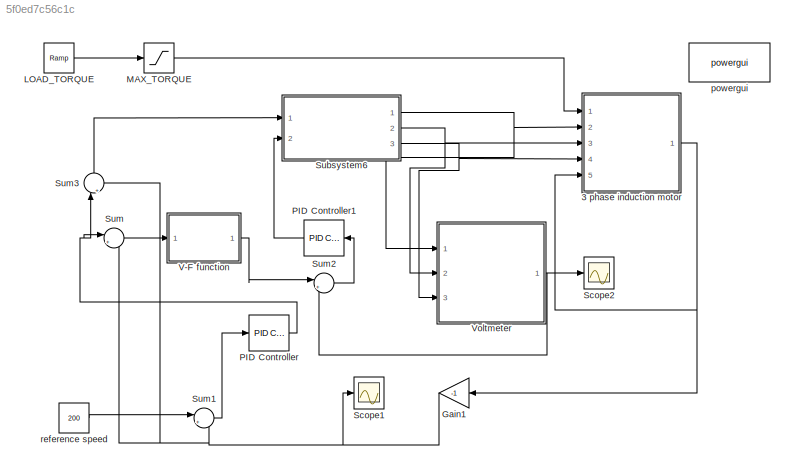
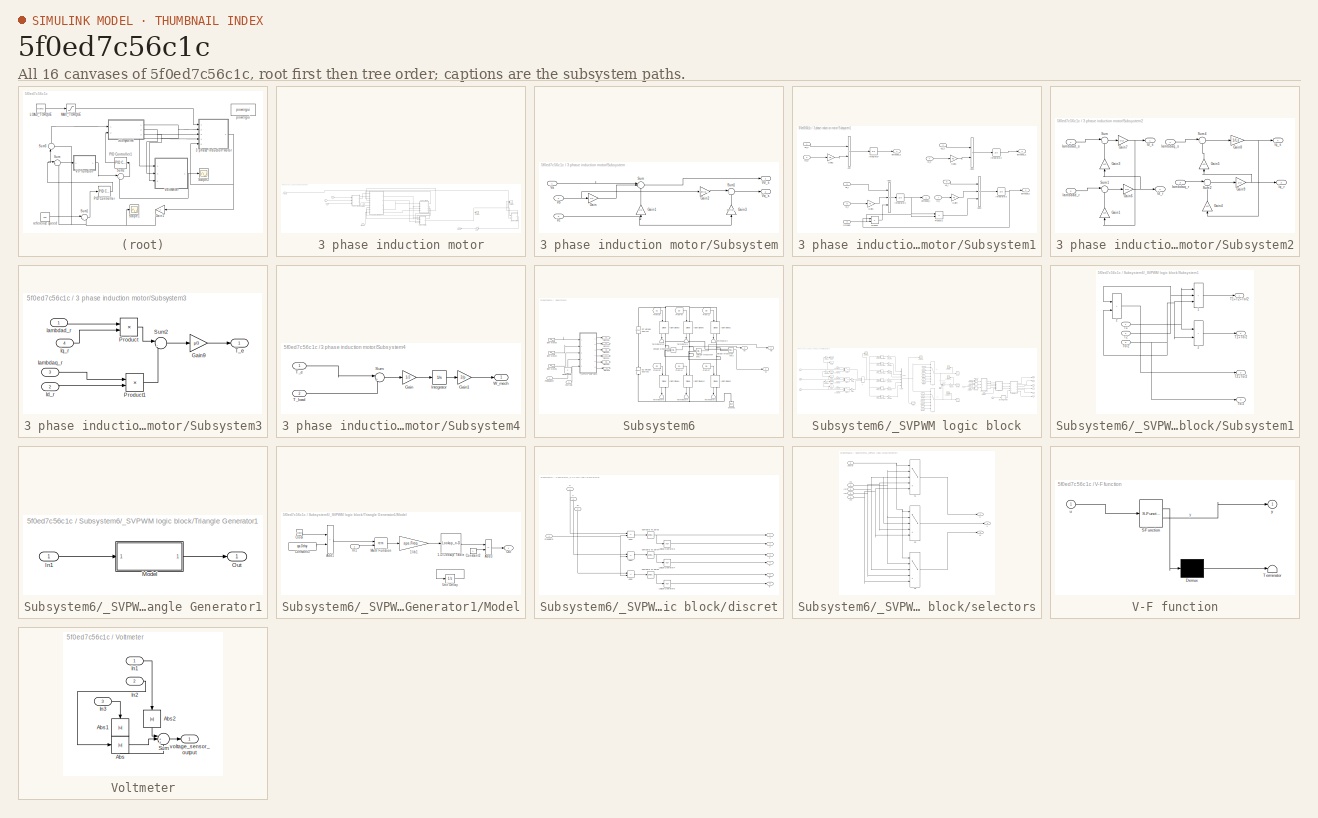
[diagram: thumbnail index - all 16 canvases of the model, root first then tree order]
MODEL slx_5f0ed7c56c1c
KIND model
CONFIG AbsTol = auto
CONFIG EnableMultiTasking = off
CONFIG FixedStep = auto
CONFIG MaxStep = auto
CONFIG MinStep = auto
CONFIG RelTol = 1e-3
CONFIG SampleTimeConstraint = Unconstrained
CONFIG SolverName = FixedStepAuto
CONFIG StartTime = 0.0
CONFIG StopTime = 200
BLOCK [SubSystem] 3 phase induction motor
  Ports = [5, 1]
  RequestExecContextInheritance = off
BLOCK [Constant] 3 phase induction motor/Constant
  Value = 0
BLOCK [Gain] 3 phase induction motor/Gain
  Gain = p/2
  NameLocation = top
BLOCK [Inport] 3 phase induction motor/Omega
  Port = 5
BLOCK [Scope] 3 phase induction motor/Scope
  Floating = off
  NumInputPorts = 1
  Ports = [1]
  ScopeSpecificationString = Simulink.scopes.TimeScopeBlockCfg('CurrentConfiguration', extmgr.ConfigurationSet(extmgr.Configuration('Core','General UI',true),extmgr.Configuration('Core','Source UI',true),extmgr.Configuration('Sources','WiredSimulink',true),extmgr.Configuration('Visuals','Time Domain',true,'SerializedDisplays',{struct('MinYLimReal','-1408.61101','MaxYLimReal','706.05147','YLabelReal','','MinYLimMag','  0.00000...<+1461ch>
BLOCK [Outport] 3 phase induction motor/Speed
BLOCK [SubSystem] 3 phase induction motor/Subsystem
  Ports = [3, 2]
  RequestExecContextInheritance = off
BLOCK [Gain] 3 phase induction motor/Subsystem/Gain
  Gain = 1/2
BLOCK [Gain] 3 phase induction motor/Subsystem/Gain1
  Gain = 1/2
  NameLocation = right
BLOCK [Gain] 3 phase induction motor/Subsystem/Gain2
  Gain = sqrt(3)/2
BLOCK [Gain] 3 phase induction motor/Subsystem/Gain3
  Gain = sqrt(3)/2
  NameLocation = right
BLOCK [Sum] 3 phase induction motor/Subsystem/Sum
  Inputs = |+--
  Ports = [3, 1]
BLOCK [Sum] 3 phase induction motor/Subsystem/Sum1
  Inputs = |+-
  Ports = [2, 1]
BLOCK [Inport] 3 phase induction motor/Subsystem/Va
BLOCK [Inport] 3 phase induction motor/Subsystem/Vb
  Port = 2
BLOCK [Inport] 3 phase induction motor/Subsystem/Vc
  Port = 3
BLOCK [Outport] 3 phase induction motor/Subsystem/Vd_s
  VectorParamsAs1DForOutWhenUnconnected = off
BLOCK [Outport] 3 phase induction motor/Subsystem/Vq_s
  Port = 2
  VectorParamsAs1DForOutWhenUnconnected = off
BLOCK [SubSystem] 3 phase induction motor/Subsystem1
  Ports = [9, 4]
  RequestExecContextInheritance = off
BLOCK [Sum] 3 phase induction motor/Subsystem1/Add
  IconShape = rectangular
  Inputs = +-
  Ports = [2, 1]
BLOCK [Sum] 3 phase induction motor/Subsystem1/Add1
  IconShape = rectangular
  Inputs = +--
  Ports = [3, 1]
BLOCK [Sum] 3 phase induction motor/Subsystem1/Add2
  IconShape = rectangular
  Inputs = +-
  Ports = [2, 1]
BLOCK [Sum] 3 phase induction motor/Subsystem1/Add3
  IconShape = rectangular
  Inputs = +-+
  Ports = [3, 1]
BLOCK [Gain] 3 phase induction motor/Subsystem1/Gain1
  Gain = Rr
BLOCK [Gain] 3 phase induction motor/Subsystem1/Gain2
  Gain = Rs
BLOCK [Gain] 3 phase induction motor/Subsystem1/Gain3
  Gain = Rs
BLOCK [Gain] 3 phase induction motor/Subsystem1/Gain4
  Gain = Rr
BLOCK [Inport] 3 phase induction motor/Subsystem1/Id_r
  Port = 8
BLOCK [Inport] 3 phase induction motor/Subsystem1/Id_s
  Port = 3
BLOCK [Integrator] 3 phase induction motor/Subsystem1/Integrator
  Ports = [1, 1]
BLOCK [Integrator] 3 phase induction motor/Subsystem1/Integrator1
  Ports = [1, 1]
BLOCK [Integrator] 3 phase induction motor/Subsystem1/Integrator2
  Ports = [1, 1]
BLOCK [Integrator] 3 phase induction motor/Subsystem1/Integrator3
  Ports = [1, 1]
BLOCK [Inport] 3 phase induction motor/Subsystem1/Iq_r
  Port = 7
BLOCK [Inport] 3 phase induction motor/Subsystem1/Iq_s
  Port = 4
BLOCK [Inport] 3 phase induction motor/Subsystem1/Omega
  Port = 9
BLOCK [Product] 3 phase induction motor/Subsystem1/Product
  Ports = [2, 1]
BLOCK [Product] 3 phase induction motor/Subsystem1/Product1
  Ports = [2, 1]
BLOCK [Inport] 3 phase induction motor/Subsystem1/Vd_r
  Port = 6
BLOCK [Inport] 3 phase induction motor/Subsystem1/Vd_s
BLOCK [Inport] 3 phase induction motor/Subsystem1/Vq_r
  Port = 5
BLOCK [Inport] 3 phase induction motor/Subsystem1/Vq_s
  Port = 2
BLOCK [Outport] 3 phase induction motor/Subsystem1/lambdad_r
  VectorParamsAs1DForOutWhenUnconnected = off
BLOCK [Outport] 3 phase induction motor/Subsystem1/lambdad_s
  Port = 4
  VectorParamsAs1DForOutWhenUnconnected = off
BLOCK [Outport] 3 phase induction motor/Subsystem1/lambdaq_r
  Port = 2
  VectorParamsAs1DForOutWhenUnconnected = off
BLOCK [Outport] 3 phase induction motor/Subsystem1/lambdaq_s
  Port = 3
  VectorParamsAs1DForOutWhenUnconnected = off
BLOCK [SubSystem] 3 phase induction motor/Subsystem2
  Ports = [4, 4]
  RequestExecContextInheritance = off
BLOCK [Gain] 3 phase induction motor/Subsystem2/Gain1
  Gain = Lm
  NameLocation = right
BLOCK [Gain] 3 phase induction motor/Subsystem2/Gain3
  Gain = Lm
  NameLocation = right
BLOCK [Gain] 3 phase induction motor/Subsystem2/Gain4
  Gain = Lm
  NameLocation = right
BLOCK [Gain] 3 phase induction motor/Subsystem2/Gain5
  Gain = Lm
  NameLocation = right
BLOCK [Gain] 3 phase induction motor/Subsystem2/Gain6
  Gain = 1/Lr
BLOCK [Gain] 3 phase induction motor/Subsystem2/Gain7
  Gain = 1/Ls
BLOCK [Gain] 3 phase induction motor/Subsystem2/Gain8
  Gain = 1/Ls
BLOCK [Gain] 3 phase induction motor/Subsystem2/Gain9
  Gain = 1/Lr
BLOCK [Inport] 3 phase induction motor/Subsystem2/Iambdad_r
  Port = 2
BLOCK [Inport] 3 phase induction motor/Subsystem2/Iambdad_s
BLOCK [Inport] 3 phase induction motor/Subsystem2/Iambdaq_r
  Port = 3
BLOCK [Inport] 3 phase induction motor/Subsystem2/Iambdaq_s
  Port = 4
BLOCK [Outport] 3 phase induction motor/Subsystem2/Id_r
  Port = 2
  VectorParamsAs1DForOutWhenUnconnected = off
BLOCK [Outport] 3 phase induction motor/Subsystem2/Id_s
  VectorParamsAs1DForOutWhenUnconnected = off
BLOCK [Outport] 3 phase induction motor/Subsystem2/Iq_r
  Port = 3
  VectorParamsAs1DForOutWhenUnconnected = off
BLOCK [Outport] 3 phase induction motor/Subsystem2/Iq_s
  Port = 4
  VectorParamsAs1DForOutWhenUnconnected = off
BLOCK [Sum] 3 phase induction motor/Subsystem2/Sum
  Inputs = |+-
  Ports = [2, 1]
BLOCK [Sum] 3 phase induction motor/Subsystem2/Sum1
  Inputs = |+-
  Ports = [2, 1]
BLOCK [Sum] 3 phase induction motor/Subsystem2/Sum2
  Inputs = |+-
  Ports = [2, 1]
BLOCK [Sum] 3 phase induction motor/Subsystem2/Sum4
  Inputs = |+-
  Ports = [2, 1]
BLOCK [SubSystem] 3 phase induction motor/Subsystem3
  Ports = [4, 1]
  RequestExecContextInheritance = off
BLOCK [Gain] 3 phase induction motor/Subsystem3/Gain9
  Gain = p/3
BLOCK [Inport] 3 phase induction motor/Subsystem3/Iambdaq_r
  Port = 3
BLOCK [Inport] 3 phase induction motor/Subsystem3/Id_r
  Port = 2
BLOCK [Inport] 3 phase induction motor/Subsystem3/Iq_r
  Port = 4
BLOCK [Product] 3 phase induction motor/Subsystem3/Product
  Ports = [2, 1]
BLOCK [Product] 3 phase induction motor/Subsystem3/Product1
  Ports = [2, 1]
BLOCK [Sum] 3 phase induction motor/Subsystem3/Sum2
  Inputs = |-+
  Ports = [2, 1]
BLOCK [Outport] 3 phase induction motor/Subsystem3/T_e
  VectorParamsAs1DForOutWhenUnconnected = off
BLOCK [Inport] 3 phase induction motor/Subsystem3/lambdad_r
BLOCK [SubSystem] 3 phase induction motor/Subsystem4
  Ports = [2, 1]
  RequestExecContextInheritance = off
BLOCK [Gain] 3 phase induction motor/Subsystem4/Gain
  Gain = 1/J
BLOCK [Gain] 3 phase induction motor/Subsystem4/Gain1
  Gain = 2/p
BLOCK [Integrator] 3 phase induction motor/Subsystem4/Integrator
  Ports = [1, 1]
BLOCK [Sum] 3 phase induction motor/Subsystem4/Sum
  Inputs = |+-
  Ports = [2, 1]
BLOCK [Inport] 3 phase induction motor/Subsystem4/T_e
BLOCK [Inport] 3 phase induction motor/Subsystem4/T_load
  Port = 2
BLOCK [Outport] 3 phase induction motor/Subsystem4/W_mech
  VectorParamsAs1DForOutWhenUnconnected = off
BLOCK [Inport] 3 phase induction motor/T_load
BLOCK [Inport] 3 phase induction motor/Va
  Port = 2
BLOCK [Inport] 3 phase induction motor/Vb
  Port = 3
BLOCK [Inport] 3 phase induction motor/Vc
  Port = 4
BLOCK [Reference] 3 phase induction motor/XY Graph  REF=simulink/Sinks/XY Graph
  Ports = [2]
  SourceBlock = simulink/Sinks/XY Graph
  SourceProductBaseCode = SL
  SourceType = XY scope.
BLOCK [Gain] Gain1
  Gain = -1
  NameLocation = top
BLOCK [Reference] LOAD_TORQUE  REF=simulink/Sources/Ramp
  Ports = [0, 1]
  SourceBlock = simulink/Sources/Ramp
  SourceProductBaseCode = SL
  SourceType = Ramp
BLOCK [Saturate] MAX_TORQUE
  LowerLimit = 0
  UpperLimit = 5
BLOCK [Reference] PID Controller  REF=pid_lib/PID Controller
  Ports = [1, 1]
  SourceBlock = pid_lib/PID Controller
  SourceProductBaseCode = SL
  SourceType = PID 1dof
BLOCK [Reference] PID Controller1  REF=pid_lib/PID Controller
  NameLocation = top
  Ports = [1, 1]
  SourceBlock = pid_lib/PID Controller
  SourceProductBaseCode = SL
  SourceType = PID 1dof
BLOCK [Scope] Scope1
  Floating = off
  NumInputPorts = 1
  Ports = [1]
  ScopeSpecificationString = Simulink.scopes.TimeScopeBlockCfg('CurrentConfiguration', extmgr.ConfigurationSet(extmgr.Configuration('Core','General UI',true),extmgr.Configuration('Core','Source UI',true),extmgr.Configuration('Sources','WiredSimulink',true,'DataLoggingVariableName','ScopeData1'),extmgr.Configuration('Visuals','Time Domain',true,'SerializedDisplays',{struct('MinYLimReal','-25.48747','MaxYLimReal','229.38723','Y...<+1806ch>
BLOCK [Scope] Scope2
  Floating = off
  NumInputPorts = 1
  Ports = [1]
  ScopeSpecificationString = Simulink.scopes.TimeScopeBlockCfg('CurrentConfiguration', extmgr.ConfigurationSet(extmgr.Configuration('Core','General UI',true),extmgr.Configuration('Core','Source UI',true),extmgr.Configuration('Sources','WiredSimulink',true,'DataLoggingVariableName','ScopeData1'),extmgr.Configuration('Visuals','Time Domain',true,'SerializedDisplays',{struct('MinYLimReal','-62.5','MaxYLimReal','562.49999','YLabe...<+1364ch>
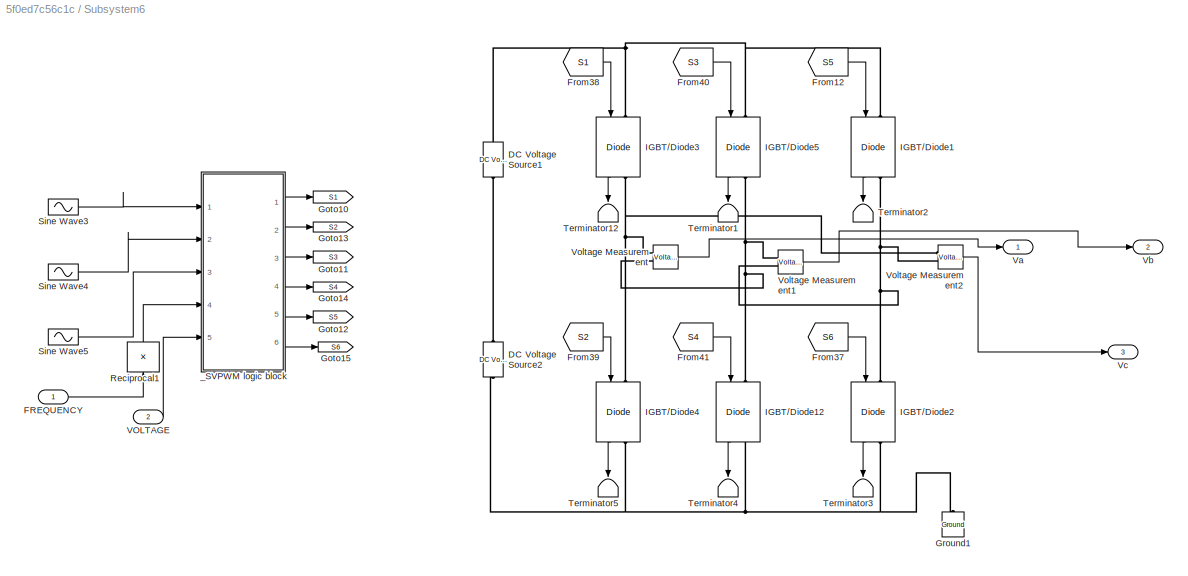
BLOCK [SubSystem] Subsystem6
  Ports = [2, 3]
  RequestExecContextInheritance = off
BLOCK [Reference] Subsystem6/DC Voltage Source1  REF=powerlib/Electrical
Sources/DC Voltage Source
  NameLocation = right
  Ports = [0, 0, 0, 0, 0, 1, 1]
  SourceBlock = powerlib/Electrical\nSources/DC Voltage Source
  SourceProductBaseCode = PS
  SourceType = DC Voltage Source
BLOCK [Reference] Subsystem6/DC Voltage Source2  REF=powerlib/Electrical
Sources/DC Voltage Source
  NameLocation = right
  Ports = [0, 0, 0, 0, 0, 1, 1]
  SourceBlock = powerlib/Electrical\nSources/DC Voltage Source
  SourceProductBaseCode = PS
  SourceType = DC Voltage Source
BLOCK [Inport] Subsystem6/FREQUENCY
BLOCK [From] Subsystem6/From12
  GotoTag = S5
BLOCK [From] Subsystem6/From37
  GotoTag = S6
BLOCK [From] Subsystem6/From38
  GotoTag = S1
BLOCK [From] Subsystem6/From39
  GotoTag = S2
BLOCK [From] Subsystem6/From40
  GotoTag = S3
BLOCK [From] Subsystem6/From41
  GotoTag = S4
BLOCK [Goto] Subsystem6/Goto10
  GotoTag = S1
BLOCK [Goto] Subsystem6/Goto11
  GotoTag = S3
BLOCK [Goto] Subsystem6/Goto12
  GotoTag = S5
BLOCK [Goto] Subsystem6/Goto13
  GotoTag = S2
BLOCK [Goto] Subsystem6/Goto14
  GotoTag = S4
BLOCK [Goto] Subsystem6/Goto15
  GotoTag = S6
BLOCK [Reference] Subsystem6/Ground1  REF=powerlib/Elements/Ground
  NameLocation = right
  Ports = [0, 0, 0, 0, 0, 1]
  SourceBlock = powerlib/Elements/Ground
  SourceProductBaseCode = PS
  SourceType = Ground
BLOCK [Reference] Subsystem6/IGBT//Diode1  REF=powerlib/Power
Electronics/IGBT//Diode
  NameLocation = left
  Ports = [1, 1, 0, 0, 0, 1, 1]
  SourceBlock = powerlib/Power\nElectronics/IGBT//Diode
  SourceProductBaseCode = PS
  SourceType = IGBT/Diode
BLOCK [Reference] Subsystem6/IGBT//Diode12  REF=powerlib/Power
Electronics/IGBT//Diode
  NameLocation = left
  Ports = [1, 1, 0, 0, 0, 1, 1]
  SourceBlock = powerlib/Power\nElectronics/IGBT//Diode
  SourceProductBaseCode = PS
  SourceType = IGBT/Diode
BLOCK [Reference] Subsystem6/IGBT//Diode2  REF=powerlib/Power
Electronics/IGBT//Diode
  NameLocation = left
  Ports = [1, 1, 0, 0, 0, 1, 1]
  SourceBlock = powerlib/Power\nElectronics/IGBT//Diode
  SourceProductBaseCode = PS
  SourceType = IGBT/Diode
BLOCK [Reference] Subsystem6/IGBT//Diode3  REF=powerlib/Power
Electronics/IGBT//Diode
  NameLocation = left
  Ports = [1, 1, 0, 0, 0, 1, 1]
  SourceBlock = powerlib/Power\nElectronics/IGBT//Diode
  SourceProductBaseCode = PS
  SourceType = IGBT/Diode
BLOCK [Reference] Subsystem6/IGBT//Diode4  REF=powerlib/Power
Electronics/IGBT//Diode
  NameLocation = left
  Ports = [1, 1, 0, 0, 0, 1, 1]
  SourceBlock = powerlib/Power\nElectronics/IGBT//Diode
  SourceProductBaseCode = PS
  SourceType = IGBT/Diode
BLOCK [Reference] Subsystem6/IGBT//Diode5  REF=powerlib/Power
Electronics/IGBT//Diode
  NameLocation = left
  Ports = [1, 1, 0, 0, 0, 1, 1]
  SourceBlock = powerlib/Power\nElectronics/IGBT//Diode
  SourceProductBaseCode = PS
  SourceType = IGBT/Diode
BLOCK [Product] Subsystem6/Reciprocal1
  Inputs = /
  NameLocation = right
  Ports = [1, 1]
BLOCK [Sin] Subsystem6/Sine Wave3
  Frequency = 50*2*pi
  Ports = [0, 1]
  SampleTime = 0
BLOCK [Sin] Subsystem6/Sine Wave4
  Frequency = 50*2*pi
  Phase = pi*(-2/3)
  Ports = [0, 1]
  SampleTime = 0
BLOCK [Sin] Subsystem6/Sine Wave5
  Frequency = 50*2*pi
  Phase = pi*(2/3)
  Ports = [0, 1]
  SampleTime = 0
BLOCK [Terminator] Subsystem6/Terminator1
  NameLocation = left
BLOCK [Terminator] Subsystem6/Terminator12
  NameLocation = left
BLOCK [Terminator] Subsystem6/Terminator2
  NameLocation = left
BLOCK [Terminator] Subsystem6/Terminator3
  NameLocation = left
BLOCK [Terminator] Subsystem6/Terminator4
  NameLocation = left
BLOCK [Terminator] Subsystem6/Terminator5
  NameLocation = left
BLOCK [Inport] Subsystem6/VOLTAGE
  Port = 2
BLOCK [Outport] Subsystem6/Va
BLOCK [Outport] Subsystem6/Vb
  Port = 2
BLOCK [Outport] Subsystem6/Vc
  Port = 3
BLOCK [Reference] Subsystem6/Voltage Measurement  REF=powerlib/Measurements/Voltage Measurement
  Ports = [0, 1, 0, 0, 0, 2]
  SourceBlock = powerlib/Measurements/Voltage Measurement
  SourceProductBaseCode = PS
  SourceType = Voltage Measurement
  UserDataPersistent = on
BLOCK [Reference] Subsystem6/Voltage Measurement1  REF=powerlib/Measurements/Voltage Measurement
  Ports = [0, 1, 0, 0, 0, 2]
  SourceBlock = powerlib/Measurements/Voltage Measurement
  SourceProductBaseCode = PS
  SourceType = Voltage Measurement
  UserDataPersistent = on
BLOCK [Reference] Subsystem6/Voltage Measurement2  REF=powerlib/Measurements/Voltage Measurement
  Ports = [0, 1, 0, 0, 0, 2]
  SourceBlock = powerlib/Measurements/Voltage Measurement
  SourceProductBaseCode = PS
  SourceType = Voltage Measurement
  UserDataPersistent = on
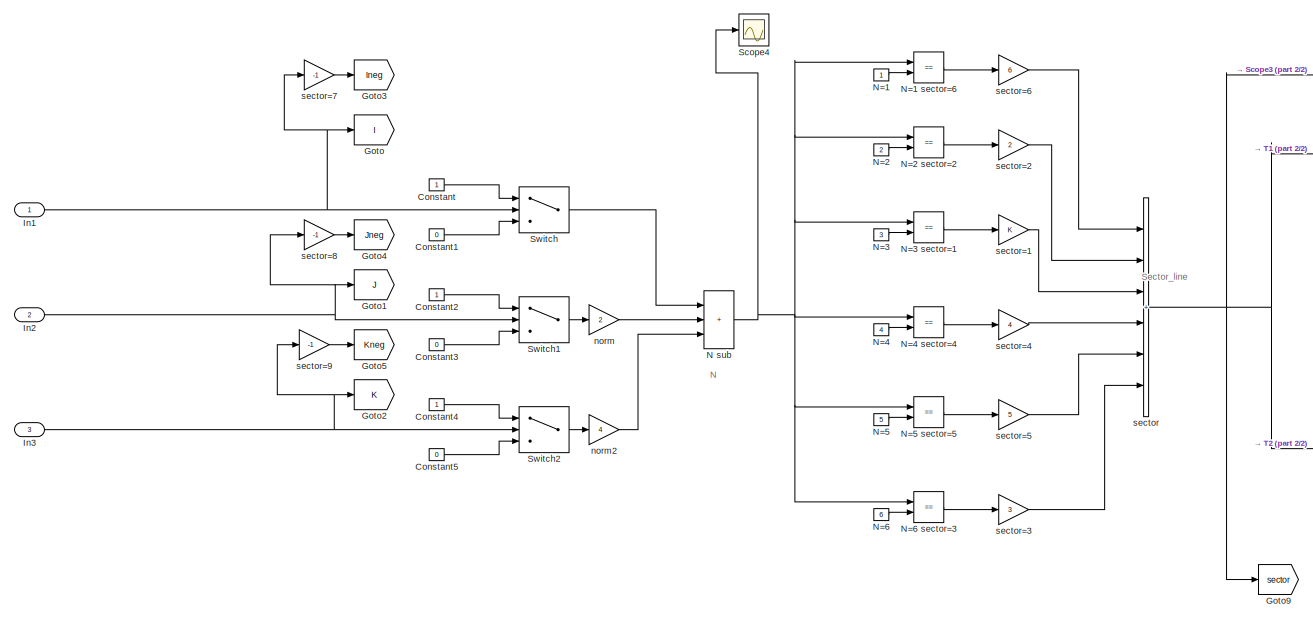
[diagram: Subsystem6/_SVPWM logic block - part 1/2, left side, full height]
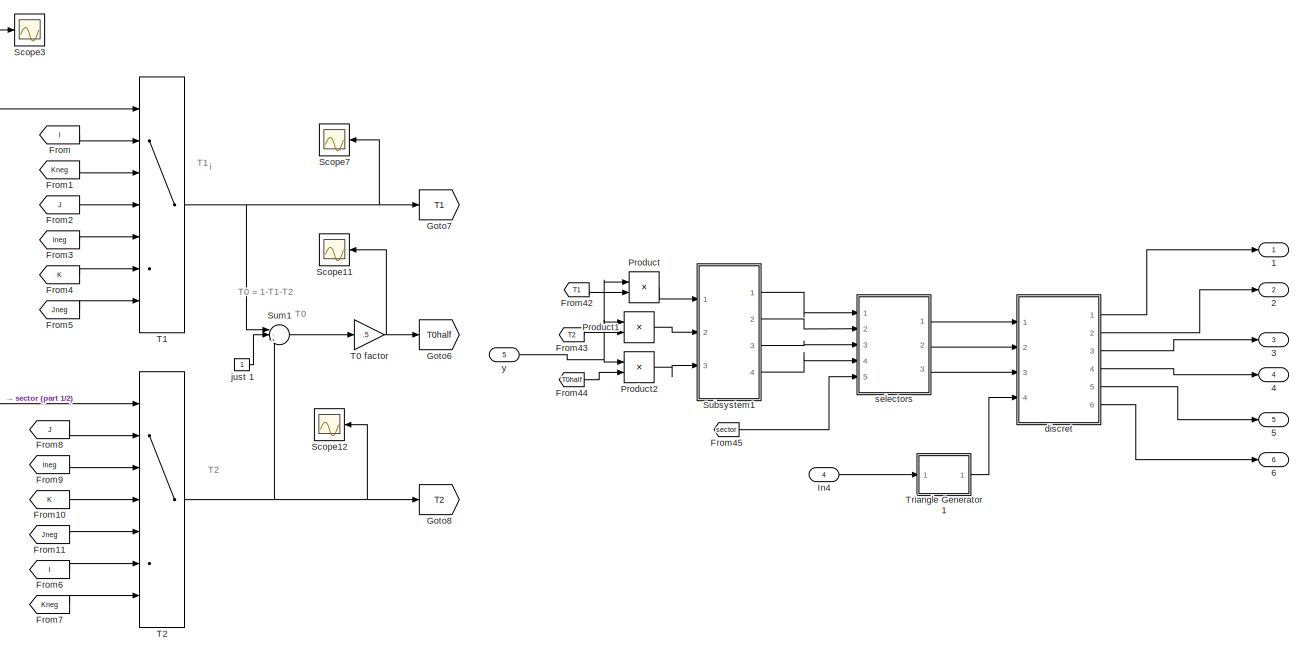
[diagram: Subsystem6/_SVPWM logic block - part 2/2, right side, full height]
BLOCK [SubSystem] Subsystem6/_SVPWM logic block
  Ports = [5, 6]
  RequestExecContextInheritance = off
BLOCK [Outport] Subsystem6/_SVPWM logic block/1
BLOCK [Outport] Subsystem6/_SVPWM logic block/2
  Port = 2
BLOCK [Outport] Subsystem6/_SVPWM logic block/3
  Port = 3
BLOCK [Outport] Subsystem6/_SVPWM logic block/4
  Port = 4
BLOCK [Outport] Subsystem6/_SVPWM logic block/5
  Port = 5
BLOCK [Outport] Subsystem6/_SVPWM logic block/6
  Port = 6
BLOCK [Constant] Subsystem6/_SVPWM logic block/Constant
BLOCK [Constant] Subsystem6/_SVPWM logic block/Constant1
  Value = 0
BLOCK [Constant] Subsystem6/_SVPWM logic block/Constant2
BLOCK [Constant] Subsystem6/_SVPWM logic block/Constant3
  Value = 0
BLOCK [Constant] Subsystem6/_SVPWM logic block/Constant4
BLOCK [Constant] Subsystem6/_SVPWM logic block/Constant5
  Value = 0
BLOCK [From] Subsystem6/_SVPWM logic block/From
  GotoTag = I
BLOCK [From] Subsystem6/_SVPWM logic block/From1
  GotoTag = Kneg
BLOCK [From] Subsystem6/_SVPWM logic block/From10
  GotoTag = K
BLOCK [From] Subsystem6/_SVPWM logic block/From11
  GotoTag = Jneg
BLOCK [From] Subsystem6/_SVPWM logic block/From2
  GotoTag = J
BLOCK [From] Subsystem6/_SVPWM logic block/From3
  GotoTag = Ineg
BLOCK [From] Subsystem6/_SVPWM logic block/From4
  GotoTag = K
BLOCK [From] Subsystem6/_SVPWM logic block/From42
  GotoTag = T1
BLOCK [From] Subsystem6/_SVPWM logic block/From43
  GotoTag = T2
BLOCK [From] Subsystem6/_SVPWM logic block/From44
  GotoTag = T0half
BLOCK [From] Subsystem6/_SVPWM logic block/From45
  GotoTag = sector
BLOCK [From] Subsystem6/_SVPWM logic block/From5
  GotoTag = Jneg
BLOCK [From] Subsystem6/_SVPWM logic block/From6
  GotoTag = I
BLOCK [From] Subsystem6/_SVPWM logic block/From7
  GotoTag = Kneg
BLOCK [From] Subsystem6/_SVPWM logic block/From8
  GotoTag = J
BLOCK [From] Subsystem6/_SVPWM logic block/From9
  GotoTag = Ineg
BLOCK [Goto] Subsystem6/_SVPWM logic block/Goto
  GotoTag = I
BLOCK [Goto] Subsystem6/_SVPWM logic block/Goto1
  GotoTag = J
BLOCK [Goto] Subsystem6/_SVPWM logic block/Goto2
  GotoTag = K
BLOCK [Goto] Subsystem6/_SVPWM logic block/Goto3
  GotoTag = Ineg
BLOCK [Goto] Subsystem6/_SVPWM logic block/Goto4
  GotoTag = Jneg
BLOCK [Goto] Subsystem6/_SVPWM logic block/Goto5
  GotoTag = Kneg
BLOCK [Goto] Subsystem6/_SVPWM logic block/Goto6
  GotoTag = T0half
BLOCK [Goto] Subsystem6/_SVPWM logic block/Goto7
  GotoTag = T1
BLOCK [Goto] Subsystem6/_SVPWM logic block/Goto8
  GotoTag = T2
BLOCK [Goto] Subsystem6/_SVPWM logic block/Goto9
  GotoTag = sector
BLOCK [Inport] Subsystem6/_SVPWM logic block/In1
BLOCK [Inport] Subsystem6/_SVPWM logic block/In2
  Port = 2
BLOCK [Inport] Subsystem6/_SVPWM logic block/In3
  Port = 3
BLOCK [Inport] Subsystem6/_SVPWM logic block/In4
  Port = 4
BLOCK [Sum] Subsystem6/_SVPWM logic block/N sub
  IconShape = rectangular
  Inputs = +++
  Ports = [3, 1]
BLOCK [Constant] Subsystem6/_SVPWM logic block/N=1
BLOCK [RelationalOperator] Subsystem6/_SVPWM logic block/N=1 sector=6
  InputSameDT = off
  Operator = ==
  OutDataTypeStr = boolean
  Ports = [2, 1]
BLOCK [Constant] Subsystem6/_SVPWM logic block/N=2
  Value = 2
BLOCK [RelationalOperator] Subsystem6/_SVPWM logic block/N=2 sector=2
  InputSameDT = off
  Operator = ==
  OutDataTypeStr = boolean
  Ports = [2, 1]
BLOCK [Constant] Subsystem6/_SVPWM logic block/N=3
  Value = 3
BLOCK [RelationalOperator] Subsystem6/_SVPWM logic block/N=3 sector=1
  InputSameDT = off
  Operator = ==
  OutDataTypeStr = boolean
  Ports = [2, 1]
BLOCK [Constant] Subsystem6/_SVPWM logic block/N=4
  Value = 4
BLOCK [RelationalOperator] Subsystem6/_SVPWM logic block/N=4 sector=4
  InputSameDT = off
  Operator = ==
  OutDataTypeStr = boolean
  Ports = [2, 1]
BLOCK [Constant] Subsystem6/_SVPWM logic block/N=5
  Value = 5
BLOCK [RelationalOperator] Subsystem6/_SVPWM logic block/N=5 sector=5
  InputSameDT = off
  Operator = ==
  OutDataTypeStr = boolean
  Ports = [2, 1]
BLOCK [Constant] Subsystem6/_SVPWM logic block/N=6
  Value = 6
BLOCK [RelationalOperator] Subsystem6/_SVPWM logic block/N=6 sector=3
  InputSameDT = off
  Operator = ==
  OutDataTypeStr = boolean
  Ports = [2, 1]
BLOCK [Product] Subsystem6/_SVPWM logic block/Product
  Ports = [2, 1]
BLOCK [Product] Subsystem6/_SVPWM logic block/Product1
  Ports = [2, 1]
BLOCK [Product] Subsystem6/_SVPWM logic block/Product2
  Ports = [2, 1]
BLOCK [Scope] Subsystem6/_SVPWM logic block/Scope11
  Floating = off
  NameLocation = top
  NumInputPorts = 1
  Ports = [1]
  ScopeSpecificationString = C++SS(StrPVP('Location','[5, 34, 1925, 1058]'),StrPVP('Open','off'),StrPVP('ZoomMode','xonly'),MxPVP('AxesTitles',54,'struct(''axes1'',''%<SignalLabel>'')'),MxPVP('ScopeGraphics',57,'struct(''FigureColor'',''[0.501960784313725 0.501960784313725 0.501960784313725]'',''AxesColor'',''[0 0 0]'',''AxesTickColor'',''[1 1 1]'',''LineColors'',''[1 1 0;1 0 1;0 1 1;1 0 0;0 1 0;0 0 1]'',''LineStyles'',''-|-|...<+419ch>  <repeated x3 — deduplicated; at blocks: Scope11, Scope12, Scope7>
BLOCK [Scope] Subsystem6/_SVPWM logic block/Scope12
  Floating = off
  NameLocation = top
  NumInputPorts = 1
  Ports = [1]
BLOCK [Scope] Subsystem6/_SVPWM logic block/Scope3
  Floating = off
  NumInputPorts = 1
  Ports = [1]
  ScopeSpecificationString = C++SS(StrPVP('Location','[1, 55, 1921, 1079]'),StrPVP('Open','off'),MxPVP('AxesTitles',54,'struct(''axes1'',''%<SignalLabel>'')'),MxPVP('ScopeGraphics',57,'struct(''FigureColor'',''[0.5 0.5 0.5]'',''AxesColor'',''[0 0 0]'',''AxesTickColor'',''[1 1 1]'',''LineColors'',''[1 1 0;1 0 1;0 1 1;1 0 0;0 1 0;0 0 1]'',''LineStyles'',''-|-|-|-|-|-'',''LineWidths'',''[0.5 0.5 0.5 0.5 0.5 0.5]'',''MarkerStyles...<+271ch>
BLOCK [Scope] Subsystem6/_SVPWM logic block/Scope4
  Floating = off
  NumInputPorts = 1
  Ports = [1]
  ScopeSpecificationString = C++SS(StrPVP('Location','[1, 55, 1921, 1079]'),StrPVP('Open','off'),MxPVP('AxesTitles',54,'struct(''axes1'',''%<SignalLabel>'')'),MxPVP('ScopeGraphics',57,'struct(''FigureColor'',''[0.5 0.5 0.5]'',''AxesColor'',''[0 0 0]'',''AxesTickColor'',''[1 1 1]'',''LineColors'',''[1 1 0;1 0 1;0 1 1;1 0 0;0 1 0;0 0 1]'',''LineStyles'',''-|-|-|-|-|-'',''LineWidths'',''[0.5 0.5 0.5 0.5 0.5 0.5]'',''MarkerStyles...<+271ch>
BLOCK [Scope] Subsystem6/_SVPWM logic block/Scope7
  Floating = off
  NameLocation = top
  NumInputPorts = 1
  Ports = [1]
BLOCK [SubSystem] Subsystem6/_SVPWM logic block/Subsystem1
  Ports = [3, 4]
  RequestExecContextInheritance = off
BLOCK [Sum] Subsystem6/_SVPWM logic block/Subsystem1/1
  IconShape = rectangular
  Inputs = +++
  Ports = [3, 1]
BLOCK [Sum] Subsystem6/_SVPWM logic block/Subsystem1/2
  IconShape = rectangular
  Ports = [2, 1]
BLOCK [Inport] Subsystem6/_SVPWM logic block/Subsystem1/T0//2
  Port = 3
BLOCK [Inport] Subsystem6/_SVPWM logic block/Subsystem1/T1
BLOCK [Outport] Subsystem6/_SVPWM logic block/Subsystem1/T1+T2+To//2
BLOCK [Outport] Subsystem6/_SVPWM logic block/Subsystem1/T1+To//2
  Port = 2
BLOCK [Inport] Subsystem6/_SVPWM logic block/Subsystem1/T2
  Port = 2
BLOCK [Outport] Subsystem6/_SVPWM logic block/Subsystem1/T2+To//2
  Port = 3
BLOCK [Outport] Subsystem6/_SVPWM logic block/Subsystem1/To//2
  Port = 4
BLOCK [Sum] Subsystem6/_SVPWM logic block/Subsystem1/z
  IconShape = rectangular
  Ports = [2, 1]
BLOCK [Sum] Subsystem6/_SVPWM logic block/Sum1
  Inputs = |-+-
  Ports = [3, 1]
BLOCK [Switch] Subsystem6/_SVPWM logic block/Switch
  InputSameDT = off
  SaturateOnIntegerOverflow = off
BLOCK [Switch] Subsystem6/_SVPWM logic block/Switch1
  InputSameDT = off
  SaturateOnIntegerOverflow = off
BLOCK [Switch] Subsystem6/_SVPWM logic block/Switch2
  InputSameDT = off
  SaturateOnIntegerOverflow = off
BLOCK [Gain] Subsystem6/_SVPWM logic block/T0 factor
  Gain = .5
BLOCK [MultiPortSwitch] Subsystem6/_SVPWM logic block/T1
  DataPortIndices = {1,2,3,4,5,6}
  DataPortOrder = Specify indices
  InputSameDT = off
  Inputs = 4
  Ports = [7, 1]
  SaturateOnIntegerOverflow = off
BLOCK [MultiPortSwitch] Subsystem6/_SVPWM logic block/T2
  DataPortIndices = {1,2,3,4,5,6}
  DataPortOrder = Specify indices
  InputSameDT = off
  Inputs = 4
  Ports = [7, 1]
  SaturateOnIntegerOverflow = off
BLOCK [SubSystem] Subsystem6/_SVPWM logic block/Triangle Generator1
  AncestorBlock = powerlib_meascontrol/Pulse & Signal\nGenerators/Triangle\nGenerator
  CloseFcn = sps_rtmsupport('CloseFcn', gcbh);
  CopyFcn = sps_rtmsupport('CopyFcn', gcbh);
  DeleteFcn = sps_rtmsupport('DeleteFcn', gcbh);
  DialogController = POWERSYS.PowerSysDialog
  LoadFcn = sps_rtmsupport('LoadFcn', gcbh);
  ModelCloseFcn = sps_rtmsupport('ModelCloseFcn', gcbh);
  NameChangeFcn = sps_rtmsupport('NameChangeFcn', gcbh);
  OpenFcn = sps_rtmsupport('OpenFcn', gcbh, []);
  Ports = [1, 1]
  PostSaveFcn = sps_rtmsupport('PostSaveFcn', gcbh);
  PreCopyFcn = sps_rtmsupport('PreCopyFcn', gcbh);
  PreDeleteFcn = sps_rtmsupport('PreDeleteFcn', gcbh);
  PreSaveFcn = sps_rtmsupport('PreSaveFcn', gcbh);
  RequestExecContextInheritance = off
  StartFcn = sps_rtmsupport('StartFcn', gcbh);
  StopFcn = sps_rtmsupport('StopFcn', gcbh);
  UndoDeleteFcn = sps_rtmsupport('UndoDeleteFcn', gcbh);
BLOCK [Inport] Subsystem6/_SVPWM logic block/Triangle Generator1/In1
BLOCK [SubSystem] Subsystem6/_SVPWM logic block/Triangle Generator1/Model
  AncestorBlock = spsTriangleGeneratorModel/Continuous
  Ports = [1, 1]
  RequestExecContextInheritance = off
BLOCK [Lookup_n-D] Subsystem6/_SVPWM logic block/Triangle Generator1/Model/1-D Lookup Table
  BeginIndexSearchUsingPreviousIndexResult = on
  BreakpointsForDimension1 = [0 .5 1]
  InputPortMap = u0
  InternalRulePriority = Speed
  NumberOfTableDimensions = 1
  Ports = [1, 1]
  RndMeth = Simplest
  Table = [0 2 0]
BLOCK [Gain] Subsystem6/_SVPWM logic block/Triangle Generator1/Model/1\ib1
  Gain = sps.Freq
  NameLocation = top
  OutDataTypeStr = Inherit: Same as input
  ParamDataTypeStr = Inherit: Same as input
  SaturateOnIntegerOverflow = on
BLOCK [Sum] Subsystem6/_SVPWM logic block/Triangle Generator1/Model/Add1
  IconShape = rectangular
  Ports = [2, 1]
BLOCK [Sum] Subsystem6/_SVPWM logic block/Triangle Generator1/Model/Add3
  IconShape = rectangular
  Inputs = +-
  Ports = [2, 1]
BLOCK [Clock] Subsystem6/_SVPWM logic block/Triangle Generator1/Model/Clock
  Decimation = 1
  NameLocation = top
BLOCK [Constant] Subsystem6/_SVPWM logic block/Triangle Generator1/Model/Constant2
  SampleTime = 0
BLOCK [Constant] Subsystem6/_SVPWM logic block/Triangle Generator1/Model/Constant3
  SampleTime = 0
  Value = sps.Delay
BLOCK [Inport] Subsystem6/_SVPWM logic block/Triangle Generator1/Model/In1
BLOCK [Math] Subsystem6/_SVPWM logic block/Triangle Generator1/Model/Math Function
  Operator = rem
  Ports = [2, 1]
  SignedPower = on
BLOCK [Outport] Subsystem6/_SVPWM logic block/Triangle Generator1/Model/Out
BLOCK [UnitDelay] Subsystem6/_SVPWM logic block/Triangle Generator1/Model/Unit Delay
  HasFrameUpgradeWarning = on
  SampleTime = sps.TimeStepZ
BLOCK [Outport] Subsystem6/_SVPWM logic block/Triangle Generator1/Out
  VectorParamsAs1DForOutWhenUnconnected = off
BLOCK [SubSystem] Subsystem6/_SVPWM logic block/discret
  Ports = [4, 6]
  RequestExecContextInheritance = off
BLOCK [Outport] Subsystem6/_SVPWM logic block/discret/1
BLOCK [Outport] Subsystem6/_SVPWM logic block/discret/2
  Port = 2
BLOCK [Outport] Subsystem6/_SVPWM logic block/discret/3
  Port = 3
BLOCK [Outport] Subsystem6/_SVPWM logic block/discret/4
  Port = 4
BLOCK [Outport] Subsystem6/_SVPWM logic block/discret/5
  Port = 5
BLOCK [Outport] Subsystem6/_SVPWM logic block/discret/6
  Port = 6
BLOCK [Sum] Subsystem6/_SVPWM logic block/discret/Add3
  IconShape = rectangular
  Inputs = -+
  Ports = [2, 1]
BLOCK [Sum] Subsystem6/_SVPWM logic block/discret/Add4
  IconShape = rectangular
  Inputs = -+
  Ports = [2, 1]
BLOCK [Sum] Subsystem6/_SVPWM logic block/discret/Add5
  IconShape = rectangular
  Inputs = -+
  Ports = [2, 1]
BLOCK [Reference] Subsystem6/_SVPWM logic block/discret/Compare To Zero3  REF=simulink/Logic and Bit
Operations/Compare
To Zero
  Ports = [1, 1]
  SourceBlock = simulink/Logic and Bit\nOperations/Compare\nTo Zero
  SourceProductBaseCode = SL
  SourceType = Compare To Zero
BLOCK [Reference] Subsystem6/_SVPWM logic block/discret/Compare To Zero4  REF=simulink/Logic and Bit
Operations/Compare
To Zero
  Ports = [1, 1]
  SourceBlock = simulink/Logic and Bit\nOperations/Compare\nTo Zero
  SourceProductBaseCode = SL
  SourceType = Compare To Zero
BLOCK [Reference] Subsystem6/_SVPWM logic block/discret/Compare To Zero5  REF=simulink/Logic and Bit
Operations/Compare
To Zero
  Ports = [1, 1]
  SourceBlock = simulink/Logic and Bit\nOperations/Compare\nTo Zero
  SourceProductBaseCode = SL
  SourceType = Compare To Zero
BLOCK [Logic] Subsystem6/_SVPWM logic block/discret/Logical Operator3
  AllPortsSameDT = off
  Operator = NOT
  OutDataTypeStr = boolean
  Ports = [1, 1]
BLOCK [Logic] Subsystem6/_SVPWM logic block/discret/Logical Operator4
  AllPortsSameDT = off
  Operator = NOT
  OutDataTypeStr = boolean
  Ports = [1, 1]
BLOCK [Logic] Subsystem6/_SVPWM logic block/discret/Logical Operator5
  AllPortsSameDT = off
  Operator = NOT
  OutDataTypeStr = boolean
  Ports = [1, 1]
BLOCK [Inport] Subsystem6/_SVPWM logic block/discret/U
  NameLocation = right
BLOCK [Inport] Subsystem6/_SVPWM logic block/discret/V
  NameLocation = right
  Port = 2
BLOCK [Inport] Subsystem6/_SVPWM logic block/discret/W
  NameLocation = right
  Port = 3
BLOCK [Inport] Subsystem6/_SVPWM logic block/discret/modulator
  Port = 4
BLOCK [Constant] Subsystem6/_SVPWM logic block/just 1
BLOCK [Gain] Subsystem6/_SVPWM logic block/norm
  Gain = 2
BLOCK [Gain] Subsystem6/_SVPWM logic block/norm2
  Gain = 4
BLOCK [Sum] Subsystem6/_SVPWM logic block/sector
  IconShape = rectangular
  Inputs = ++++++
  Ports = [6, 1]
BLOCK [Gain] Subsystem6/_SVPWM logic block/sector=1
BLOCK [Gain] Subsystem6/_SVPWM logic block/sector=2
  Gain = 2
BLOCK [Gain] Subsystem6/_SVPWM logic block/sector=3
  Gain = 3
BLOCK [Gain] Subsystem6/_SVPWM logic block/sector=4
  Gain = 4
BLOCK [Gain] Subsystem6/_SVPWM logic block/sector=5
  Gain = 5
BLOCK [Gain] Subsystem6/_SVPWM logic block/sector=6
  Gain = 6
BLOCK [Gain] Subsystem6/_SVPWM logic block/sector=7
  Gain = -1
BLOCK [Gain] Subsystem6/_SVPWM logic block/sector=8
  Gain = -1
BLOCK [Gain] Subsystem6/_SVPWM logic block/sector=9
  Gain = -1
BLOCK [SubSystem] Subsystem6/_SVPWM logic block/selectors
  Ports = [5, 3]
  RequestExecContextInheritance = off
BLOCK [Inport] Subsystem6/_SVPWM logic block/selectors/In1
BLOCK [Inport] Subsystem6/_SVPWM logic block/selectors/In2
  Port = 2
BLOCK [Inport] Subsystem6/_SVPWM logic block/selectors/In3
  Port = 3
BLOCK [Inport] Subsystem6/_SVPWM logic block/selectors/In4
  Port = 4
BLOCK [MultiPortSwitch] Subsystem6/_SVPWM logic block/selectors/S1
  DataPortIndices = {[1,6],2,5,[3,4]}
  DataPortOrder = Specify indices
  InputSameDT = off
  Inputs = 4
  Ports = [5, 1]
  SaturateOnIntegerOverflow = off
BLOCK [MultiPortSwitch] Subsystem6/_SVPWM logic block/selectors/S3
  DataPortIndices = {[2,3],4,1,[5,6]}
  DataPortOrder = Specify indices
  InputSameDT = off
  Inputs = 4
  Ports = [5, 1]
  SaturateOnIntegerOverflow = off
BLOCK [MultiPortSwitch] Subsystem6/_SVPWM logic block/selectors/S5
  DataPortIndices = {[4,5],6,3,[1,2]}
  DataPortOrder = Specify indices
  InputSameDT = off
  Inputs = 4
  Ports = [5, 1]
  SaturateOnIntegerOverflow = off
BLOCK [Outport] Subsystem6/_SVPWM logic block/selectors/U
BLOCK [Outport] Subsystem6/_SVPWM logic block/selectors/V
  Port = 2
BLOCK [Outport] Subsystem6/_SVPWM logic block/selectors/W
  Port = 3
BLOCK [Inport] Subsystem6/_SVPWM logic block/selectors/sector 
  Port = 5
BLOCK [Inport] Subsystem6/_SVPWM logic block/y
  Port = 5
BLOCK [Sum] Sum
  Inputs = |++
  Ports = [2, 1]
BLOCK [Sum] Sum1
  Inputs = |+-
  Ports = [2, 1]
BLOCK [Sum] Sum2
  Inputs = |+-
  Ports = [2, 1]
BLOCK [Sum] Sum3
  Inputs = |+-
  NameLocation = right
  Ports = [2, 1]
BLOCK [SubSystem] V-F function
  ErrorFcn = Stateflow.Translate.translate
  PermitHierarchicalResolution = ExplicitOnly
  Ports = [1, 1]
  RequestExecContextInheritance = off
  SFBlockType = MATLAB Function
  TreatAsAtomicUnit = on
BLOCK [Demux] V-F function/ Demux 
  Outputs = 1
  Ports = [1, 1]
BLOCK [S-Function] V-F function/ SFunction 
  EnableBusSupport = on
  FunctionName = sf_sfun
  PortCounts = [1 2]
  Ports = [1, 2]
  SFcnIsStateOwnerBlock = off
  SFunctionDeploymentMode = off
  Tag = Stateflow S-Function 2
BLOCK [Terminator] V-F function/ Terminator 
BLOCK [Inport] V-F function/u
BLOCK [Outport] V-F function/y
BLOCK [SubSystem] Voltmeter
  Ports = [3, 1]
  RequestExecContextInheritance = off
BLOCK [Abs] Voltmeter/Abs
  SaturateOnIntegerOverflow = off
BLOCK [Abs] Voltmeter/Abs1
  NameLocation = left
  SaturateOnIntegerOverflow = off
BLOCK [Abs] Voltmeter/Abs2
  NameLocation = left
  SaturateOnIntegerOverflow = off
BLOCK [Inport] Voltmeter/In1
BLOCK [Inport] Voltmeter/In2
  Port = 2
BLOCK [Inport] Voltmeter/In3
  Port = 3
BLOCK [Sum] Voltmeter/Sum
  Inputs = |+++
  Ports = [3, 1]
BLOCK [Outport] Voltmeter/voltage_sensor_output
BLOCK [Reference] powergui  REF=powerlib/powergui
  Ports = []
  Priority = 1
  SourceBlock = powerlib/powergui
  SourceProductBaseCode = PS
  SourceType = PSB option menu block
BLOCK [Constant] reference speed
  Value = 200
ANNOTATION Subsystem6/_SVPWM logic block: N
ANNOTATION Subsystem6/_SVPWM logic block: Sector_line
ANNOTATION Subsystem6/_SVPWM logic block: T0
ANNOTATION Subsystem6/_SVPWM logic block: T0 = 1-T1-T2
ANNOTATION Subsystem6/_SVPWM logic block: T1
ANNOTATION Subsystem6/_SVPWM logic block: T2
ANNOTATION Subsystem6/_SVPWM logic block: i
NET 3 phase induction motor/Constant:1 -> 3 phase induction motor/Subsystem1:5, 3 phase induction motor/Subsystem1:6
LINE 3 phase induction motor/Gain:1 -> 3 phase induction motor/Speed:1
LINE 3 phase induction motor/Omega:1 -> 3 phase induction motor/Subsystem1:9
LINE 3 phase induction motor/Subsystem/Gain1:1 -> 3 phase induction motor/Subsystem/Sum:3
LINE 3 phase induction motor/Subsystem/Gain2:1 -> 3 phase induction motor/Subsystem/Sum1:1
LINE 3 phase induction motor/Subsystem/Gain3:1 -> 3 phase induction motor/Subsystem/Sum1:2
LINE 3 phase induction motor/Subsystem/Gain:1 -> 3 phase induction motor/Subsystem/Sum:2
LINE 3 phase induction motor/Subsystem/Sum1:1 -> 3 phase induction motor/Subsystem/Vq_s:1
LINE 3 phase induction motor/Subsystem/Sum:1 -> 3 phase induction motor/Subsystem/Vd_s:1
LINE 3 phase induction motor/Subsystem/Va:1 -> 3 phase induction motor/Subsystem/Sum:1
NET 3 phase induction motor/Subsystem/Vb:1 -> 3 phase induction motor/Subsystem/Gain2:1, 3 phase induction motor/Subsystem/Gain:1
NET 3 phase induction motor/Subsystem/Vc:1 -> 3 phase induction motor/Subsystem/Gain1:1, 3 phase induction motor/Subsystem/Gain3:1
LINE 3 phase induction motor/Subsystem1/Add1:1 -> 3 phase induction motor/Subsystem1/Integrator1:1
LINE 3 phase induction motor/Subsystem1/Add2:1 -> 3 phase induction motor/Subsystem1/Integrator2:1
LINE 3 phase induction motor/Subsystem1/Add3:1 -> 3 phase induction motor/Subsystem1/Integrator3:1
LINE 3 phase induction motor/Subsystem1/Add:1 -> 3 phase induction motor/Subsystem1/Integrator:1
LINE 3 phase induction motor/Subsystem1/Gain1:1 -> 3 phase induction motor/Subsystem1/Add1:2
LINE 3 phase induction motor/Subsystem1/Gain2:1 -> 3 phase induction motor/Subsystem1/Add:2
LINE 3 phase induction motor/Subsystem1/Gain3:1 -> 3 phase induction motor/Subsystem1/Add2:2
LINE 3 phase induction motor/Subsystem1/Gain4:1 -> 3 phase induction motor/Subsystem1/Add3:2
LINE 3 phase induction motor/Subsystem1/Id_r:1 -> 3 phase induction motor/Subsystem1/Gain1:1
LINE 3 phase induction motor/Subsystem1/Id_s:1 -> 3 phase induction motor/Subsystem1/Gain2:1
NET 3 phase induction motor/Subsystem1/Integrator1:1 -> 3 phase induction motor/Subsystem1/Product1:1, 3 phase induction motor/Subsystem1/lambdad_r:1
LINE 3 phase induction motor/Subsystem1/Integrator2:1 -> 3 phase induction motor/Subsystem1/lambdaq_s:1
NET 3 phase induction motor/Subsystem1/Integrator3:1 -> 3 phase induction motor/Subsystem1/Product:1, 3 phase induction motor/Subsystem1/lambdaq_r:1
LINE 3 phase induction motor/Subsystem1/Integrator:1 -> 3 phase induction motor/Subsystem1/lambdad_s:1
LINE 3 phase induction motor/Subsystem1/Iq_r:1 -> 3 phase induction motor/Subsystem1/Gain4:1
LINE 3 phase induction motor/Subsystem1/Iq_s:1 -> 3 phase induction motor/Subsystem1/Gain3:1
NET 3 phase induction motor/Subsystem1/Omega:1 -> 3 phase induction motor/Subsystem1/Product1:2, 3 phase induction motor/Subsystem1/Product:2
LINE 3 phase induction motor/Subsystem1/Product1:1 -> 3 phase induction motor/Subsystem1/Add3:3
LINE 3 phase induction motor/Subsystem1/Product:1 -> 3 phase induction motor/Subsystem1/Add1:3
LINE 3 phase induction motor/Subsystem1/Vd_r:1 -> 3 phase induction motor/Subsystem1/Add1:1
LINE 3 phase induction motor/Subsystem1/Vd_s:1 -> 3 phase induction motor/Subsystem1/Add:1
LINE 3 phase induction motor/Subsystem1/Vq_r:1 -> 3 phase induction motor/Subsystem1/Add3:1
LINE 3 phase induction motor/Subsystem1/Vq_s:1 -> 3 phase induction motor/Subsystem1/Add2:1
NET 3 phase induction motor/Subsystem1:1 -> 3 phase induction motor/Subsystem2:2, 3 phase induction motor/Subsystem3:1
NET 3 phase induction motor/Subsystem1:2 -> 3 phase induction motor/Subsystem2:3, 3 phase induction motor/Subsystem3:3
LINE 3 phase induction motor/Subsystem1:3 -> 3 phase induction motor/Subsystem2:4
LINE 3 phase induction motor/Subsystem1:4 -> 3 phase induction motor/Subsystem2:1
LINE 3 phase induction motor/Subsystem2/Gain1:1 -> 3 phase induction motor/Subsystem2/Sum1:2
LINE 3 phase induction motor/Subsystem2/Gain3:1 -> 3 phase induction motor/Subsystem2/Sum:2
LINE 3 phase induction motor/Subsystem2/Gain4:1 -> 3 phase induction motor/Subsystem2/Sum2:2
LINE 3 phase induction motor/Subsystem2/Gain5:1 -> 3 phase induction motor/Subsystem2/Sum4:2
NET 3 phase induction motor/Subsystem2/Gain6:1 -> 3 phase induction motor/Subsystem2/Gain3:1, 3 phase induction motor/Subsystem2/Id_r:1
NET 3 phase induction motor/Subsystem2/Gain7:1 -> 3 phase induction motor/Subsystem2/Gain1:1, 3 phase induction motor/Subsystem2/Id_s:1
NET 3 phase induction motor/Subsystem2/Gain8:1 -> 3 phase induction motor/Subsystem2/Gain4:1, 3 phase induction motor/Subsystem2/Iq_s:1
NET 3 phase induction motor/Subsystem2/Gain9:1 -> 3 phase induction motor/Subsystem2/Gain5:1, 3 phase induction motor/Subsystem2/Iq_r:1
LINE 3 phase induction motor/Subsystem2/Iambdad_r:1 -> 3 phase induction motor/Subsystem2/Sum1:1
LINE 3 phase induction motor/Subsystem2/Iambdad_s:1 -> 3 phase induction motor/Subsystem2/Sum:1
LINE 3 phase induction motor/Subsystem2/Iambdaq_r:1 -> 3 phase induction motor/Subsystem2/Sum2:1
LINE 3 phase induction motor/Subsystem2/Iambdaq_s:1 -> 3 phase induction motor/Subsystem2/Sum4:1
LINE 3 phase induction motor/Subsystem2/Sum1:1 -> 3 phase induction motor/Subsystem2/Gain6:1
LINE 3 phase induction motor/Subsystem2/Sum2:1 -> 3 phase induction motor/Subsystem2/Gain9:1
LINE 3 phase induction motor/Subsystem2/Sum4:1 -> 3 phase induction motor/Subsystem2/Gain8:1
LINE 3 phase induction motor/Subsystem2/Sum:1 -> 3 phase induction motor/Subsystem2/Gain7:1
LINE 3 phase induction motor/Subsystem2:1 -> 3 phase induction motor/Subsystem1:3
NET 3 phase induction motor/Subsystem2:2 -> 3 phase induction motor/Subsystem1:8, 3 phase induction motor/Subsystem3:2
NET 3 phase induction motor/Subsystem2:3 -> 3 phase induction motor/Subsystem1:7, 3 phase induction motor/Subsystem3:4
LINE 3 phase induction motor/Subsystem2:4 -> 3 phase induction motor/Subsystem1:4
LINE 3 phase induction motor/Subsystem3/Gain9:1 -> 3 phase induction motor/Subsystem3/T_e:1
LINE 3 phase induction motor/Subsystem3/Iambdaq_r:1 -> 3 phase induction motor/Subsystem3/Product1:1
LINE 3 phase induction motor/Subsystem3/Id_r:1 -> 3 phase induction motor/Subsystem3/Product1:2
LINE 3 phase induction motor/Subsystem3/Iq_r:1 -> 3 phase induction motor/Subsystem3/Product:2
LINE 3 phase induction motor/Subsystem3/Product1:1 -> 3 phase induction motor/Subsystem3/Sum2:2
LINE 3 phase induction motor/Subsystem3/Product:1 -> 3 phase induction motor/Subsystem3/Sum2:1
LINE 3 phase induction motor/Subsystem3/Sum2:1 -> 3 phase induction motor/Subsystem3/Gain9:1
LINE 3 phase induction motor/Subsystem3/lambdad_r:1 -> 3 phase induction motor/Subsystem3/Product:1
NET 3 phase induction motor/Subsystem3:1 -> 3 phase induction motor/Scope:1, 3 phase induction motor/Subsystem4:1, 3 phase induction motor/XY Graph:2
LINE 3 phase induction motor/Subsystem4/Gain1:1 -> 3 phase induction motor/Subsystem4/W_mech:1
LINE 3 phase induction motor/Subsystem4/Gain:1 -> 3 phase induction motor/Subsystem4/Integrator:1
LINE 3 phase induction motor/Subsystem4/Integrator:1 -> 3 phase induction motor/Subsystem4/Gain1:1
LINE 3 phase induction motor/Subsystem4/Sum:1 -> 3 phase induction motor/Subsystem4/Gain:1
LINE 3 phase induction motor/Subsystem4/T_e:1 -> 3 phase induction motor/Subsystem4/Sum:1
LINE 3 phase induction motor/Subsystem4/T_load:1 -> 3 phase induction motor/Subsystem4/Sum:2
NET 3 phase induction motor/Subsystem4:1 -> 3 phase induction motor/Gain:1, 3 phase induction motor/XY Graph:1
LINE 3 phase induction motor/Subsystem:1 -> 3 phase induction motor/Subsystem1:1
LINE 3 phase induction motor/Subsystem:2 -> 3 phase induction motor/Subsystem1:2
LINE 3 phase induction motor/T_load:1 -> 3 phase induction motor/Subsystem4:2
LINE 3 phase induction motor/Va:1 -> 3 phase induction motor/Subsystem:1
LINE 3 phase induction motor/Vb:1 -> 3 phase induction motor/Subsystem:2
LINE 3 phase induction motor/Vc:1 -> 3 phase induction motor/Subsystem:3
NET 3 phase induction motor:1 -> 3 phase induction motor:5, Gain1:1
NET Gain1:1 -> Scope1:1, Sum1:2, Sum3:2, Sum:2
LINE LOAD_TORQUE:1 -> MAX_TORQUE:1
LINE MAX_TORQUE:1 -> 3 phase induction motor:1
LINE PID Controller1:1 -> Subsystem6:2
NET PID Controller:1 -> Sum3:1, Sum:1
LINE Subsystem6/FREQUENCY:1 -> Subsystem6/Reciprocal1:1
LINE Subsystem6/From12:1 -> Subsystem6/IGBT//Diode1:1
LINE Subsystem6/From37:1 -> Subsystem6/IGBT//Diode2:1
LINE Subsystem6/From38:1 -> Subsystem6/IGBT//Diode3:1
LINE Subsystem6/From39:1 -> Subsystem6/IGBT//Diode4:1
LINE Subsystem6/From40:1 -> Subsystem6/IGBT//Diode5:1
LINE Subsystem6/From41:1 -> Subsystem6/IGBT//Diode12:1
LINE Subsystem6/IGBT//Diode12:1 -> Subsystem6/Terminator4:1
LINE Subsystem6/IGBT//Diode1:1 -> Subsystem6/Terminator2:1
LINE Subsystem6/IGBT//Diode2:1 -> Subsystem6/Terminator3:1
LINE Subsystem6/IGBT//Diode3:1 -> Subsystem6/Terminator12:1
LINE Subsystem6/IGBT//Diode4:1 -> Subsystem6/Terminator5:1
LINE Subsystem6/IGBT//Diode5:1 -> Subsystem6/Terminator1:1
LINE Subsystem6/Reciprocal1:1 -> Subsystem6/_SVPWM logic block:4
LINE Subsystem6/Sine Wave3:1 -> Subsystem6/_SVPWM logic block:1
LINE Subsystem6/Sine Wave4:1 -> Subsystem6/_SVPWM logic block:2
LINE Subsystem6/Sine Wave5:1 -> Subsystem6/_SVPWM logic block:3
LINE Subsystem6/VOLTAGE:1 -> Subsystem6/_SVPWM logic block:5
LINE Subsystem6/Voltage Measurement1:1 -> Subsystem6/Vb:1
LINE Subsystem6/Voltage Measurement2:1 -> Subsystem6/Vc:1
LINE Subsystem6/Voltage Measurement:1 -> Subsystem6/Va:1
LINE Subsystem6/_SVPWM logic block/Constant1:1 -> Subsystem6/_SVPWM logic block/Switch:3
LINE Subsystem6/_SVPWM logic block/Constant2:1 -> Subsystem6/_SVPWM logic block/Switch1:1
LINE Subsystem6/_SVPWM logic block/Constant3:1 -> Subsystem6/_SVPWM logic block/Switch1:3
LINE Subsystem6/_SVPWM logic block/Constant4:1 -> Subsystem6/_SVPWM logic block/Switch2:1
LINE Subsystem6/_SVPWM logic block/Constant5:1 -> Subsystem6/_SVPWM logic block/Switch2:3
LINE Subsystem6/_SVPWM logic block/Constant:1 -> Subsystem6/_SVPWM logic block/Switch:1
LINE Subsystem6/_SVPWM logic block/From10:1 -> Subsystem6/_SVPWM logic block/T2:4
LINE Subsystem6/_SVPWM logic block/From11:1 -> Subsystem6/_SVPWM logic block/T2:5
LINE Subsystem6/_SVPWM logic block/From1:1 -> Subsystem6/_SVPWM logic block/T1:3
LINE Subsystem6/_SVPWM logic block/From2:1 -> Subsystem6/_SVPWM logic block/T1:4
LINE Subsystem6/_SVPWM logic block/From3:1 -> Subsystem6/_SVPWM logic block/T1:5
LINE Subsystem6/_SVPWM logic block/From42:1 -> Subsystem6/_SVPWM logic block/Product:2
LINE Subsystem6/_SVPWM logic block/From43:1 -> Subsystem6/_SVPWM logic block/Product1:2
LINE Subsystem6/_SVPWM logic block/From44:1 -> Subsystem6/_SVPWM logic block/Product2:2
LINE Subsystem6/_SVPWM logic block/From45:1 -> Subsystem6/_SVPWM logic block/selectors:5
LINE Subsystem6/_SVPWM logic block/From4:1 -> Subsystem6/_SVPWM logic block/T1:6
LINE Subsystem6/_SVPWM logic block/From5:1 -> Subsystem6/_SVPWM logic block/T1:7
LINE Subsystem6/_SVPWM logic block/From6:1 -> Subsystem6/_SVPWM logic block/T2:6
LINE Subsystem6/_SVPWM logic block/From7:1 -> Subsystem6/_SVPWM logic block/T2:7
LINE Subsystem6/_SVPWM logic block/From8:1 -> Subsystem6/_SVPWM logic block/T2:2
LINE Subsystem6/_SVPWM logic block/From9:1 -> Subsystem6/_SVPWM logic block/T2:3
LINE Subsystem6/_SVPWM logic block/From:1 -> Subsystem6/_SVPWM logic block/T1:2
NET Subsystem6/_SVPWM logic block/In1:1 -> Subsystem6/_SVPWM logic block/Goto:1, Subsystem6/_SVPWM logic block/Switch:2, Subsystem6/_SVPWM logic block/sector=7:1
NET Subsystem6/_SVPWM logic block/In2:1 -> Subsystem6/_SVPWM logic block/Goto1:1, Subsystem6/_SVPWM logic block/Switch1:2, Subsystem6/_SVPWM logic block/sector=8:1
NET Subsystem6/_SVPWM logic block/In3:1 -> Subsystem6/_SVPWM logic block/Goto2:1, Subsystem6/_SVPWM logic block/Switch2:2, Subsystem6/_SVPWM logic block/sector=9:1
LINE Subsystem6/_SVPWM logic block/In4:1 -> Subsystem6/_SVPWM logic block/Triangle Generator1:1
NET Subsystem6/_SVPWM logic block/N sub:1 -> Subsystem6/_SVPWM logic block/N=1 sector=6:1, Subsystem6/_SVPWM logic block/N=2 sector=2:1, Subsystem6/_SVPWM logic block/N=3 sector=1:1, Subsystem6/_SVPWM logic block/N=4 sector=4:1, Subsystem6/_SVPWM logic block/N=5 sector=5:1, Subsystem6/_SVPWM logic block/N=6 sector=3:1, Subsystem6/_SVPWM logic block/Scope4:1
LINE Subsystem6/_SVPWM logic block/N=1 sector=6:1 -> Subsystem6/_SVPWM logic block/sector=6:1
LINE Subsystem6/_SVPWM logic block/N=1:1 -> Subsystem6/_SVPWM logic block/N=1 sector=6:2
LINE Subsystem6/_SVPWM logic block/N=2 sector=2:1 -> Subsystem6/_SVPWM logic block/sector=2:1
LINE Subsystem6/_SVPWM logic block/N=2:1 -> Subsystem6/_SVPWM logic block/N=2 sector=2:2
LINE Subsystem6/_SVPWM logic block/N=3 sector=1:1 -> Subsystem6/_SVPWM logic block/sector=1:1
LINE Subsystem6/_SVPWM logic block/N=3:1 -> Subsystem6/_SVPWM logic block/N=3 sector=1:2
LINE Subsystem6/_SVPWM logic block/N=4 sector=4:1 -> Subsystem6/_SVPWM logic block/sector=4:1
LINE Subsystem6/_SVPWM logic block/N=4:1 -> Subsystem6/_SVPWM logic block/N=4 sector=4:2
LINE Subsystem6/_SVPWM logic block/N=5 sector=5:1 -> Subsystem6/_SVPWM logic block/sector=5:1
LINE Subsystem6/_SVPWM logic block/N=5:1 -> Subsystem6/_SVPWM logic block/N=5 sector=5:2
LINE Subsystem6/_SVPWM logic block/N=6 sector=3:1 -> Subsystem6/_SVPWM logic block/sector=3:1
LINE Subsystem6/_SVPWM logic block/N=6:1 -> Subsystem6/_SVPWM logic block/N=6 sector=3:2
LINE Subsystem6/_SVPWM logic block/Product1:1 -> Subsystem6/_SVPWM logic block/Subsystem1:2
LINE Subsystem6/_SVPWM logic block/Product2:1 -> Subsystem6/_SVPWM logic block/Subsystem1:3
LINE Subsystem6/_SVPWM logic block/Product:1 -> Subsystem6/_SVPWM logic block/Subsystem1:1
LINE Subsystem6/_SVPWM logic block/Subsystem1/1:1 -> Subsystem6/_SVPWM logic block/Subsystem1/T1+T2+To//2:1
LINE Subsystem6/_SVPWM logic block/Subsystem1/2:1 -> Subsystem6/_SVPWM logic block/Subsystem1/T1+To//2:1
NET Subsystem6/_SVPWM logic block/Subsystem1/T0//2:1 -> Subsystem6/_SVPWM logic block/Subsystem1/1:3, Subsystem6/_SVPWM logic block/Subsystem1/2:2, Subsystem6/_SVPWM logic block/Subsystem1/To//2:1, Subsystem6/_SVPWM logic block/Subsystem1/z:2
NET Subsystem6/_SVPWM logic block/Subsystem1/T1:1 -> Subsystem6/_SVPWM logic block/Subsystem1/1:1, Subsystem6/_SVPWM logic block/Subsystem1/2:1
NET Subsystem6/_SVPWM logic block/Subsystem1/T2:1 -> Subsystem6/_SVPWM logic block/Subsystem1/1:2, Subsystem6/_SVPWM logic block/Subsystem1/z:1
LINE Subsystem6/_SVPWM logic block/Subsystem1/z:1 -> Subsystem6/_SVPWM logic block/Subsystem1/T2+To//2:1
LINE Subsystem6/_SVPWM logic block/Subsystem1:1 -> Subsystem6/_SVPWM logic block/selectors:1
LINE Subsystem6/_SVPWM logic block/Subsystem1:2 -> Subsystem6/_SVPWM logic block/selectors:2
LINE Subsystem6/_SVPWM logic block/Subsystem1:3 -> Subsystem6/_SVPWM logic block/selectors:3
LINE Subsystem6/_SVPWM logic block/Subsystem1:4 -> Subsystem6/_SVPWM logic block/selectors:4
LINE Subsystem6/_SVPWM logic block/Sum1:1 -> Subsystem6/_SVPWM logic block/T0 factor:1
LINE Subsystem6/_SVPWM logic block/Switch1:1 -> Subsystem6/_SVPWM logic block/norm:1
LINE Subsystem6/_SVPWM logic block/Switch2:1 -> Subsystem6/_SVPWM logic block/norm2:1
LINE Subsystem6/_SVPWM logic block/Switch:1 -> Subsystem6/_SVPWM logic block/N sub:1
NET Subsystem6/_SVPWM logic block/T0 factor:1 -> Subsystem6/_SVPWM logic block/Goto6:1, Subsystem6/_SVPWM logic block/Scope11:1
NET Subsystem6/_SVPWM logic block/T1:1 -> Subsystem6/_SVPWM logic block/Goto7:1, Subsystem6/_SVPWM logic block/Scope7:1, Subsystem6/_SVPWM logic block/Sum1:1
NET Subsystem6/_SVPWM logic block/T2:1 -> Subsystem6/_SVPWM logic block/Goto8:1, Subsystem6/_SVPWM logic block/Scope12:1, Subsystem6/_SVPWM logic block/Sum1:3
LINE Subsystem6/_SVPWM logic block/Triangle Generator1:1 -> Subsystem6/_SVPWM logic block/discret:4
LINE Subsystem6/_SVPWM logic block/discret/Add3:1 -> Subsystem6/_SVPWM logic block/discret/Compare To Zero3:1
LINE Subsystem6/_SVPWM logic block/discret/Add4:1 -> Subsystem6/_SVPWM logic block/discret/Compare To Zero4:1
LINE Subsystem6/_SVPWM logic block/discret/Add5:1 -> Subsystem6/_SVPWM logic block/discret/Compare To Zero5:1
NET Subsystem6/_SVPWM logic block/discret/Compare To Zero3:1 -> Subsystem6/_SVPWM logic block/discret/1:1, Subsystem6/_SVPWM logic block/discret/Logical Operator3:1
NET Subsystem6/_SVPWM logic block/discret/Compare To Zero4:1 -> Subsystem6/_SVPWM logic block/discret/3:1, Subsystem6/_SVPWM logic block/discret/Logical Operator4:1
NET Subsystem6/_SVPWM logic block/discret/Compare To Zero5:1 -> Subsystem6/_SVPWM logic block/discret/5:1, Subsystem6/_SVPWM logic block/discret/Logical Operator5:1
LINE Subsystem6/_SVPWM logic block/discret/Logical Operator3:1 -> Subsystem6/_SVPWM logic block/discret/2:1
LINE Subsystem6/_SVPWM logic block/discret/Logical Operator4:1 -> Subsystem6/_SVPWM logic block/discret/4:1
LINE Subsystem6/_SVPWM logic block/discret/Logical Operator5:1 -> Subsystem6/_SVPWM logic block/discret/6:1
LINE Subsystem6/_SVPWM logic block/discret/U:1 -> Subsystem6/_SVPWM logic block/discret/Add3:1
LINE Subsystem6/_SVPWM logic block/discret/V:1 -> Subsystem6/_SVPWM logic block/discret/Add4:1
LINE Subsystem6/_SVPWM logic block/discret/W:1 -> Subsystem6/_SVPWM logic block/discret/Add5:1
NET Subsystem6/_SVPWM logic block/discret/modulator:1 -> Subsystem6/_SVPWM logic block/discret/Add3:2, Subsystem6/_SVPWM logic block/discret/Add4:2, Subsystem6/_SVPWM logic block/discret/Add5:2
LINE Subsystem6/_SVPWM logic block/discret:1 -> Subsystem6/_SVPWM logic block/1:1
LINE Subsystem6/_SVPWM logic block/discret:2 -> Subsystem6/_SVPWM logic block/2:1
LINE Subsystem6/_SVPWM logic block/discret:3 -> Subsystem6/_SVPWM logic block/3:1
LINE Subsystem6/_SVPWM logic block/discret:4 -> Subsystem6/_SVPWM logic block/4:1
LINE Subsystem6/_SVPWM logic block/discret:5 -> Subsystem6/_SVPWM logic block/5:1
LINE Subsystem6/_SVPWM logic block/discret:6 -> Subsystem6/_SVPWM logic block/6:1
LINE Subsystem6/_SVPWM logic block/just 1:1 -> Subsystem6/_SVPWM logic block/Sum1:2
LINE Subsystem6/_SVPWM logic block/norm2:1 -> Subsystem6/_SVPWM logic block/N sub:3
LINE Subsystem6/_SVPWM logic block/norm:1 -> Subsystem6/_SVPWM logic block/N sub:2
NET Subsystem6/_SVPWM logic block/sector:1 -> Subsystem6/_SVPWM logic block/Goto9:1, Subsystem6/_SVPWM logic block/Scope3:1, Subsystem6/_SVPWM logic block/T1:1, Subsystem6/_SVPWM logic block/T2:1
LINE Subsystem6/_SVPWM logic block/sector=1:1 -> Subsystem6/_SVPWM logic block/sector:3
LINE Subsystem6/_SVPWM logic block/sector=2:1 -> Subsystem6/_SVPWM logic block/sector:2
LINE Subsystem6/_SVPWM logic block/sector=3:1 -> Subsystem6/_SVPWM logic block/sector:6
LINE Subsystem6/_SVPWM logic block/sector=4:1 -> Subsystem6/_SVPWM logic block/sector:4
LINE Subsystem6/_SVPWM logic block/sector=5:1 -> Subsystem6/_SVPWM logic block/sector:5
LINE Subsystem6/_SVPWM logic block/sector=6:1 -> Subsystem6/_SVPWM logic block/sector:1
LINE Subsystem6/_SVPWM logic block/sector=7:1 -> Subsystem6/_SVPWM logic block/Goto3:1
LINE Subsystem6/_SVPWM logic block/sector=8:1 -> Subsystem6/_SVPWM logic block/Goto4:1
LINE Subsystem6/_SVPWM logic block/sector=9:1 -> Subsystem6/_SVPWM logic block/Goto5:1
NET Subsystem6/_SVPWM logic block/selectors/In1:1 -> Subsystem6/_SVPWM logic block/selectors/S1:2, Subsystem6/_SVPWM logic block/selectors/S3:2, Subsystem6/_SVPWM logic block/selectors/S5:2
NET Subsystem6/_SVPWM logic block/selectors/In2:1 -> Subsystem6/_SVPWM logic block/selectors/S1:3, Subsystem6/_SVPWM logic block/selectors/S3:3, Subsystem6/_SVPWM logic block/selectors/S5:3
NET Subsystem6/_SVPWM logic block/selectors/In3:1 -> Subsystem6/_SVPWM logic block/selectors/S1:4, Subsystem6/_SVPWM logic block/selectors/S3:4, Subsystem6/_SVPWM logic block/selectors/S5:4
NET Subsystem6/_SVPWM logic block/selectors/In4:1 -> Subsystem6/_SVPWM logic block/selectors/S1:5, Subsystem6/_SVPWM logic block/selectors/S3:5, Subsystem6/_SVPWM logic block/selectors/S5:5
LINE Subsystem6/_SVPWM logic block/selectors/S1:1 -> Subsystem6/_SVPWM logic block/selectors/U:1
LINE Subsystem6/_SVPWM logic block/selectors/S3:1 -> Subsystem6/_SVPWM logic block/selectors/V:1
LINE Subsystem6/_SVPWM logic block/selectors/S5:1 -> Subsystem6/_SVPWM logic block/selectors/W:1
NET Subsystem6/_SVPWM logic block/selectors/sector :1 -> Subsystem6/_SVPWM logic block/selectors/S1:1, Subsystem6/_SVPWM logic block/selectors/S3:1, Subsystem6/_SVPWM logic block/selectors/S5:1
LINE Subsystem6/_SVPWM logic block/selectors:1 -> Subsystem6/_SVPWM logic block/discret:1
LINE Subsystem6/_SVPWM logic block/selectors:2 -> Subsystem6/_SVPWM logic block/discret:2
LINE Subsystem6/_SVPWM logic block/selectors:3 -> Subsystem6/_SVPWM logic block/discret:3
NET Subsystem6/_SVPWM logic block/y:1 -> Subsystem6/_SVPWM logic block/Product1:1, Subsystem6/_SVPWM logic block/Product2:1, Subsystem6/_SVPWM logic block/Product:1
LINE Subsystem6/_SVPWM logic block:1 -> Subsystem6/Goto10:1
LINE Subsystem6/_SVPWM logic block:2 -> Subsystem6/Goto13:1
LINE Subsystem6/_SVPWM logic block:3 -> Subsystem6/Goto11:1
LINE Subsystem6/_SVPWM logic block:4 -> Subsystem6/Goto14:1
LINE Subsystem6/_SVPWM logic block:5 -> Subsystem6/Goto12:1
LINE Subsystem6/_SVPWM logic block:6 -> Subsystem6/Goto15:1
NET Subsystem6:1 -> 3 phase induction motor:2, Voltmeter:1
NET Subsystem6:2 -> 3 phase induction motor:3, Voltmeter:2
NET Subsystem6:3 -> 3 phase induction motor:4, Voltmeter:3
LINE Sum1:1 -> PID Controller:1
LINE Sum2:1 -> PID Controller1:1
LINE Sum3:1 -> Subsystem6:1
LINE Sum:1 -> V-F function:1
LINE V-F function:1 -> Sum2:1
LINE Voltmeter/Abs1:1 -> Voltmeter/Sum:3
LINE Voltmeter/Abs2:1 -> Voltmeter/Sum:1
LINE Voltmeter/Abs:1 -> Voltmeter/Sum:2
LINE Voltmeter/In1:1 -> Voltmeter/Abs2:1
LINE Voltmeter/In2:1 -> Voltmeter/Abs:1
LINE Voltmeter/In3:1 -> Voltmeter/Abs1:1
LINE Voltmeter/Sum:1 -> Voltmeter/voltage_sensor_output:1
NET Voltmeter:1 -> Scope2:1, Sum2:2
LINE reference speed:1 -> Sum1:1
PLINE Subsystem6/DC Voltage Source1:LConn1 -- Subsystem6/DC Voltage Source2:RConn1
PNET net1: Subsystem6/DC Voltage Source1:RConn1 -- Subsystem6/IGBT//Diode1:LConn1 -- Subsystem6/IGBT//Diode3:LConn1 -- Subsystem6/IGBT//Diode5:LConn1
PNET net2: Subsystem6/DC Voltage Source2:LConn1 -- Subsystem6/Ground1:LConn1 -- Subsystem6/IGBT//Diode12:RConn1 -- Subsystem6/IGBT//Diode2:RConn1 -- Subsystem6/IGBT//Diode4:RConn1
PNET net3: Subsystem6/IGBT//Diode12:LConn1 -- Subsystem6/IGBT//Diode5:RConn1 -- Subsystem6/Voltage Measurement1:LConn1 -- Subsystem6/Voltage Measurement:LConn2
PNET net4: Subsystem6/IGBT//Diode1:RConn1 -- Subsystem6/IGBT//Diode2:LConn1 -- Subsystem6/Voltage Measurement1:LConn2 -- Subsystem6/Voltage Measurement2:LConn2
PNET net5: Subsystem6/IGBT//Diode3:RConn1 -- Subsystem6/IGBT//Diode4:LConn1 -- Subsystem6/Voltage Measurement2:LConn1 -- Subsystem6/Voltage Measurement:LConn1
note: NET lines group one-source signal fan-out (src -> all destinations, sorted); 1:1 wires keep LINE; PNET lines group multi-terminal physical nets as a canonical sorted terminal list (undirected conserving connections); 2-terminal nets keep the pairwise PLINE form
CHART V-F function states=1 transitions=1
  STATE_LABEL 'eML_blk_kernel()'
  STATE_LABEL 'SCRIPT:\nfunction y = fcn(u)\n    if u<1500\n        y = 200+0.15*u;\n        \n    else\n            y=400;\n            \n    end\n            \n\n'
CHART  states=0 transitions=0
